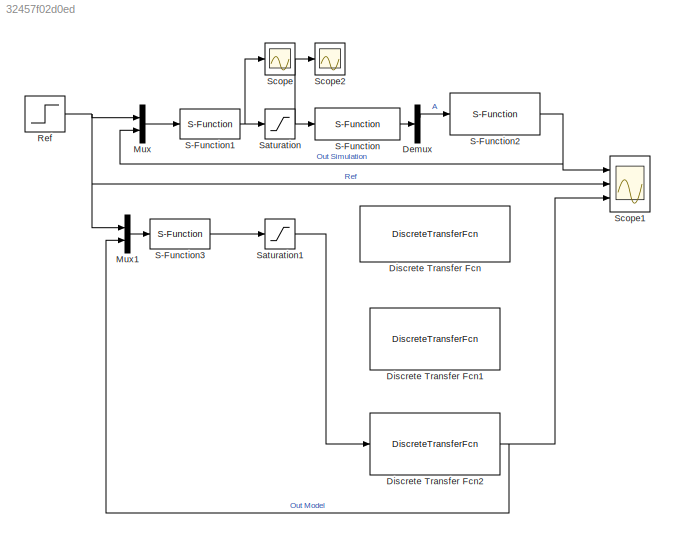
MODEL slx_32457f02d0ed
KIND model
CONFIG AbsTol = auto
CONFIG EnableMultiTasking = off
CONFIG FixedStep = 1e-4
CONFIG InitFcn = Tw=0.01;     %Ancho de Ventana\nppv=20;      %Pulsos por vuelta\nTs=1e-4;     %Tiempo de muestreo\n\nKp=0.001;\nKd=0.02;\nKi=0.4;\nh=Tw;\nN=100;\n\n% Los valores de num, den se obtienen de punto_2.m\n% Fueron hardcodeados por comodidad.\n\nnum = [0 0.7770 0];\nden = [1.0000 -0.9918 -0.0061];
CONFIG MaxStep = auto
CONFIG MinStep = auto
CONFIG RelTol = 1e-4
CONFIG SampleTimeConstraint = Unconstrained
CONFIG Solver = VariableStepAuto
CONFIG SolverName = VariableStepAuto
CONFIG StartTime = 0.0
CONFIG StopTime = 1
BLOCK [Demux] Demux
  DisplayOption = bar
  Outputs = 2
  Ports = [1, 2]
BLOCK [DiscreteTransferFcn] Discrete Transfer Fcn
  Denominator = [1 -0.9918 -0.006138]
  InputPortMap = u0
  Numerator = [0.777 0]
  Ports = [1, 1]
  SampleTime = Tw
BLOCK [DiscreteTransferFcn] Discrete Transfer Fcn1
  Denominator = [1 -1.362 0.5045]
  InputPortMap = u0
  Numerator = [51.35 0]
  Ports = [1, 1]
  SampleTime = Tw
BLOCK [DiscreteTransferFcn] Discrete Transfer Fcn2
  Denominator = [1 -1.026 0.2122]
  InputPortMap = u0
  Numerator = [69.97 0]
  Ports = [1, 1]
  SampleTime = Tw
BLOCK [Mux] Mux
  DisplayOption = bar
  Inputs = 2
  Ports = [2, 1]
BLOCK [Mux] Mux1
  DisplayOption = bar
  Inputs = 2
  Ports = [2, 1]
BLOCK [Step] Ref
  After = 4200
  SampleTime = Ts
  Time = 0.2
BLOCK [S-Function] S-Function
  EnableBusSupport = off
  FunctionName = dcmotor_qenc
  Parameters = ppv
  Ports = [1, 1]
  SFcnIsStateOwnerBlock = off
  SFunctionDeploymentMode = off
BLOCK [S-Function] S-Function1
  EnableBusSupport = off
  FunctionName = pid_sfunc
  Parameters = 0.00266,0.000897,15.9,100,0.02
  Ports = [1, 1]
  SFcnIsStateOwnerBlock = off
  SFunctionDeploymentMode = off
BLOCK [S-Function] S-Function2
  EnableBusSupport = off
  FunctionName = dcmotor_speed
  Parameters = Ts,ppv,Tw
  Ports = [1, 1]
  SFcnIsStateOwnerBlock = off
  SFunctionDeploymentMode = off
BLOCK [S-Function] S-Function3
  EnableBusSupport = off
  FunctionName = pid_sfunc
  Parameters = 0.00266,0.000897,15.9,100,0.02
  Ports = [1, 1]
  SFcnIsStateOwnerBlock = off
  SFunctionDeploymentMode = off
BLOCK [Saturate] Saturation
  InputPortMap = u0
  LowerLimit = -30
  Ports = [1, 1]
  UpperLimit = 30
BLOCK [Saturate] Saturation1
  InputPortMap = u0
  LowerLimit = -30
  Ports = [1, 1]
  UpperLimit = 30
BLOCK [Scope] Scope
  NumInputPorts = 1
  Ports = [1]
  ScopeSpecificationString = Simulink.scopes.TimeScopeBlockCfg('CurrentConfiguration', extmgr.ConfigurationSet(extmgr.Configuration('Core','General UI',true),extmgr.Configuration('Core','Source UI',true),extmgr.Configuration('Sources','WiredSimulink',true,'DataLoggingVariableName','ScopeData1'),extmgr.Configuration('Visuals','Time Domain',true,'SerializedDisplays',{struct('MinYLimReal','-14.33404','MaxYLimReal','78.83722','YL...<+1420ch>
BLOCK [Scope] Scope1
  NumInputPorts = 3
  Ports = [3]
  ScopeSpecificationString = Simulink.scopes.TimeScopeBlockCfg('CurrentConfiguration', extmgr.ConfigurationSet(extmgr.Configuration('Core','General UI',true,'FigureColor',[0.941176470588235 0.941176470588235 0.941176470588235]),extmgr.Configuration('Core','Source UI',true),extmgr.Configuration('Sources','WiredSimulink',true,'DataLoggingVariableName','ScopeData1'),extmgr.Configuration('Visuals','Time Domain',true,'TimeAxisLabe...<+1977ch>
BLOCK [Scope] Scope2
  NumInputPorts = 1
  Ports = [1]
  ScopeSpecificationString = Simulink.scopes.TimeScopeBlockCfg('CurrentConfiguration', extmgr.ConfigurationSet(extmgr.Configuration('Core','General UI',true),extmgr.Configuration('Core','Source UI',true),extmgr.Configuration('Sources','WiredSimulink',true,'DataLoggingVariableName','ScopeData2'),extmgr.Configuration('Visuals','Time Domain',true,'SerializedDisplays',{struct('MinYLimReal','-3.75','MaxYLimReal','33.75','YLabelRea...<+1355ch>
LINE Demux:1 -> S-Function2:1
NET Discrete Transfer Fcn2:1 -> Mux1:2, Scope1:3
LINE Mux1:1 -> S-Function3:1
LINE Mux:1 -> S-Function1:1
NET Ref:1 -> Mux1:1, Mux:1, Scope1:2
NET S-Function1:1 -> Saturation:1, Scope:1
NET S-Function2:1 -> Mux:2, Scope1:1
LINE S-Function3:1 -> Saturation1:1
LINE S-Function:1 -> Demux:1
LINE Saturation1:1 -> Discrete Transfer Fcn2:1
NET Saturation:1 -> S-Function:1, Scope2:1
note: NET lines group one-source signal fan-out (src -> all destinations, sorted); 1:1 wires keep LINE
